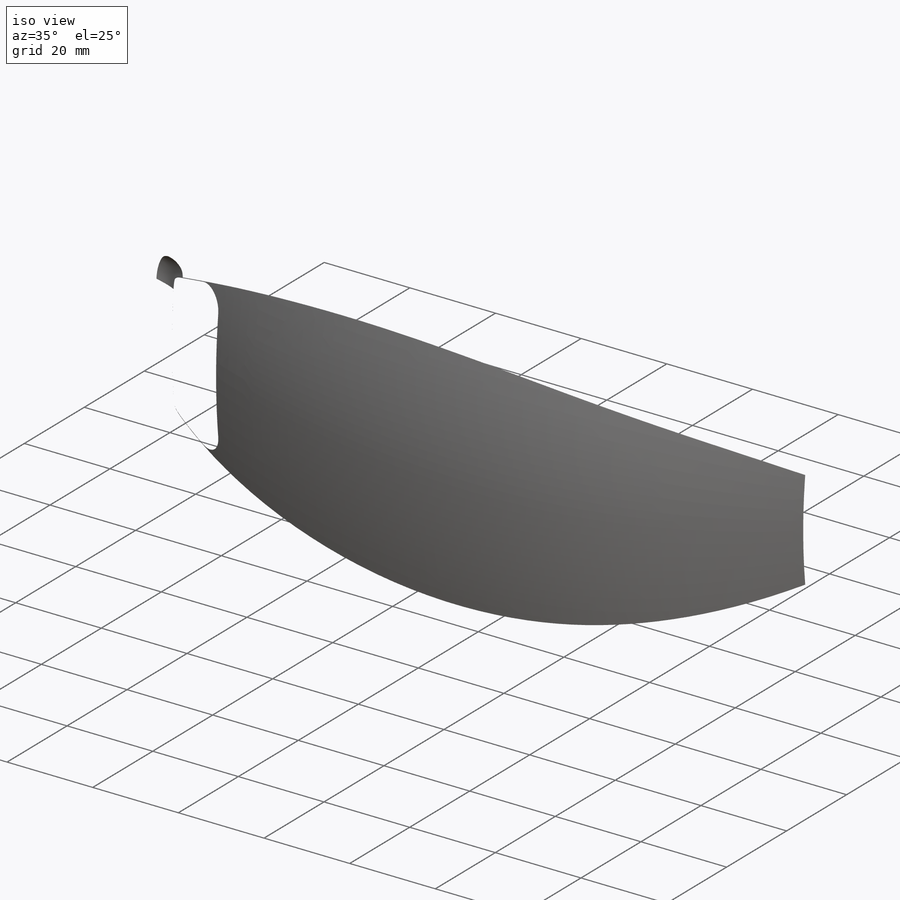
[diagram: iso view]
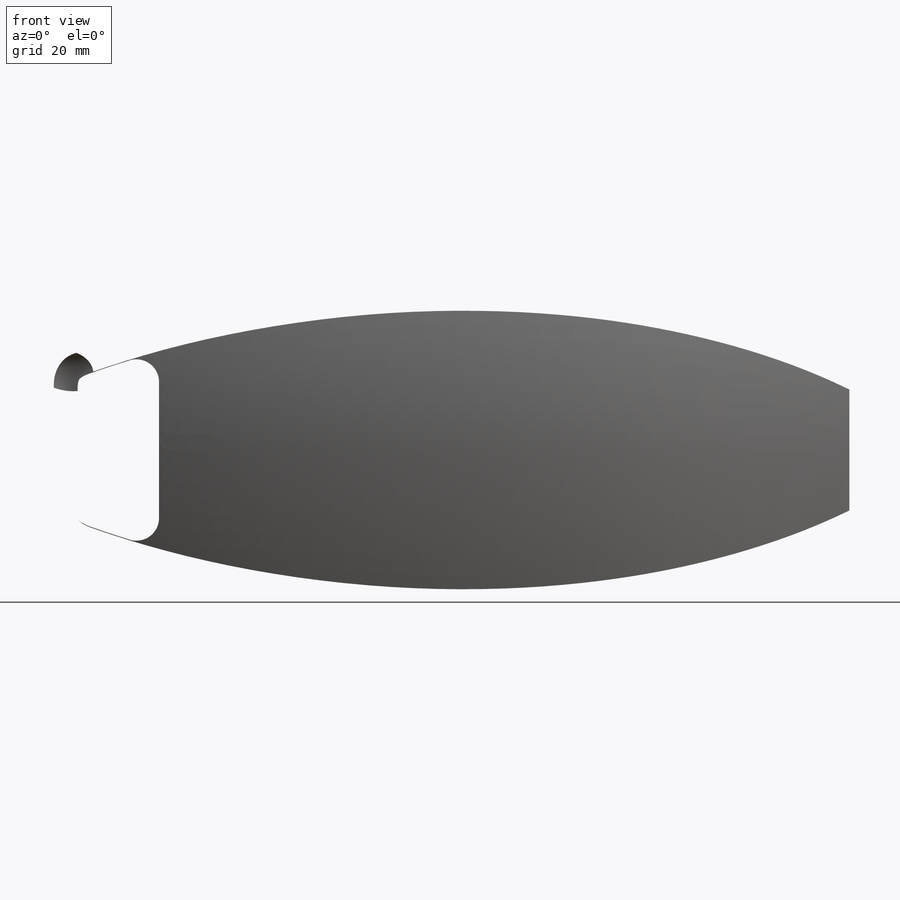
[diagram: front view]
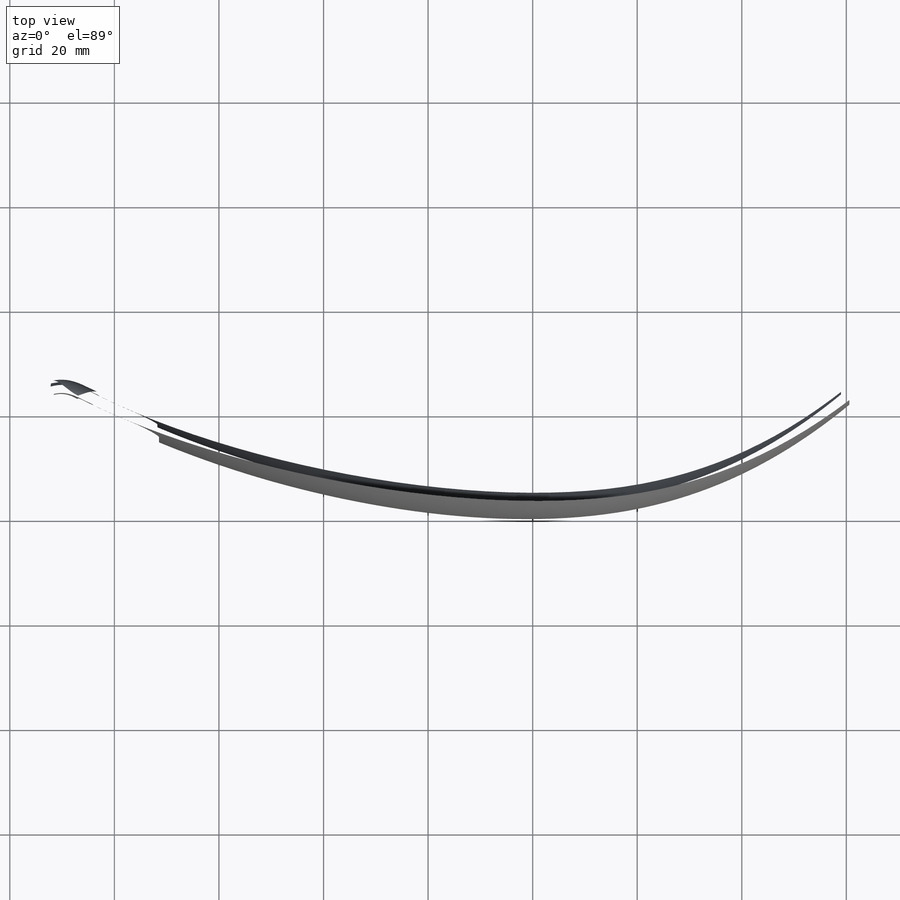
[diagram: top view]
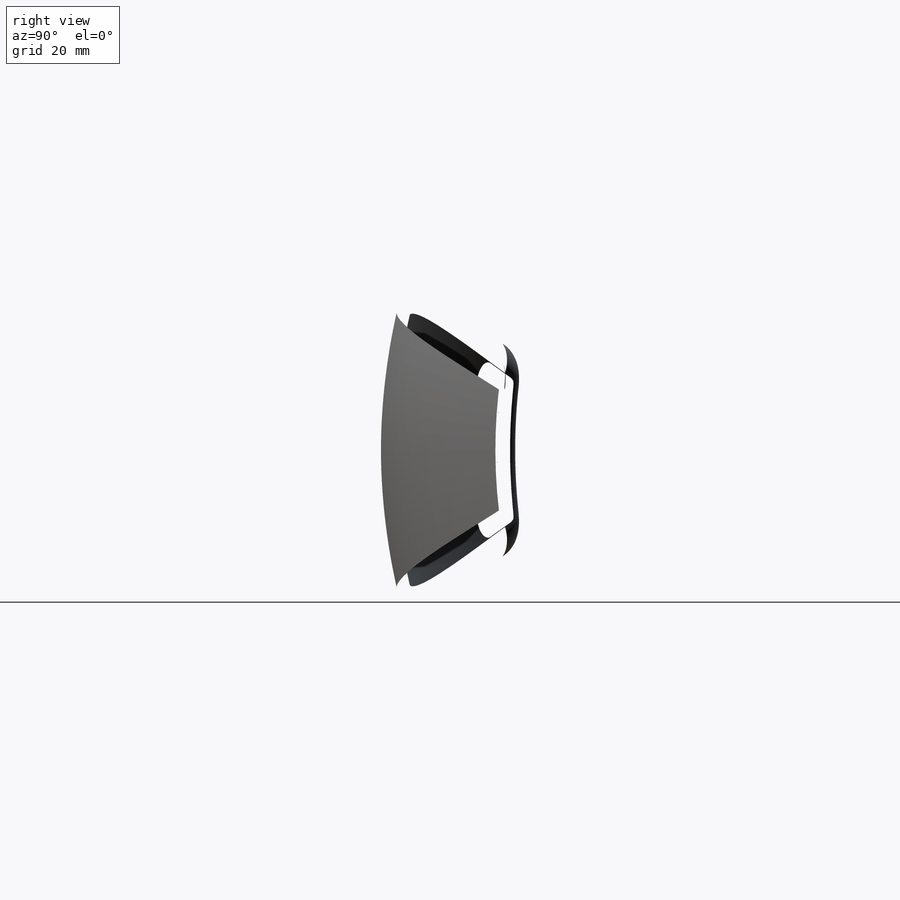
[diagram: right view]
SOLIDWORKS PART (.sldprt)
format: sldprt  version: not decoded by parser v0  size: 5,401,600 bytes
history: native  units: mm
features: sketch x19, surface_op x6, fillet x6, plane x3, mirror x3, cut_extrude x2, material x1, shell x1 (+15 scaffold rows collapsed)
feature tree (56):
  scaffold x15  (default folders/planes/origin — collapsed)
  material  "Material <not specified>"
  sketch  "Sketch1"  dims[c1.D1=254.0mm c1.D2=254.0mm c2.D1=180.0deg]
  sketch  "Sketch2"  dims[D1=~45.168939mm]
  sketch  "Sketch5"  dims[D1=127.0mm]
  sketch  "Sketch6"  dims[D1=0.0mm]
  plane  "Plane1"
  sketch  "Sketch7"  dims[D1=~14.003167mm]
  surface_op  "Surface-Extrude1"
  sketch  "Sketch8"  dims[D2=~2.644552mm D1=7.62mm]
  sketch  "Sketch9"  dims[D1=~69.239521mm D2=~19.824414mm D3=~97.45554mm]
  sketch  "3DSketch1"  dims[c1.D1=~11.120368mm c2.D1=~3.439728mm]
  mirror  "Mirror1"
  surface_op  "Surface-Knit4"
  surface_op  "Surface-Knit5"
  fillet  "Fillet3"  Radius=8.89mm
  fillet  "Fillet4"  Radius=8.89mm
  sketch  "3DSketch2"
  sketch  "3DSketch3"
  plane  "Plane2"
  sketch  "Sketch10"  dims[D1=5.08mm]
  plane  "Plane3"
  sketch  "Sketch11"  dims[c1.D1=5.08mm c2.D1=15.24mm c3.D1=15.24mm c4.D1=5.08mm c5.D1=6.604mm]
  sketch  "3DSketch4"
  sketch  "3DSketch5"
  sketch  "Sketch12"  dims[D1=~66.029467mm Curve2=0.0deg]
  sketch  "Sketch13"  dims[D1=~64.757002mm]
  sketch  "Sketch14"  dims[D1=~35.999265mm]
  mirror  "Mirror2"
  surface_op  "Surface-Knit6"
  mirror  "Mirror3"
  surface_op  "Surface-Knit7"
  surface_op  "Surface-Knit8"
  shell  "Shell1"  Thickness=2.54mm
  sketch  "Sketch15"  dims[D1=~54.778051mm]
  cut_extrude  "Extrude1"  Depth=291.084mm
  fillet  "Fillet5"  Radius=21.59mm
  sketch  "Sketch16"  dims[D2=~15.197366mm D1=0.762mm]
  cut_extrude  "Extrude2"  [1 undecoded]
  fillet  "Fillet6"  Radius=3.81mm
  fillet  "Fillet7"  Radius=0.508mm
  fillet  "Fillet8"  Radius=2.54mm
decode coverage: 23 of 37 modeling features carry decoded parameters
note: ~ marks probable driven/reference dimensions
note: 1 parameter value undecoded
note: suppression state not decoded; provenance and decode notes live in map.json
